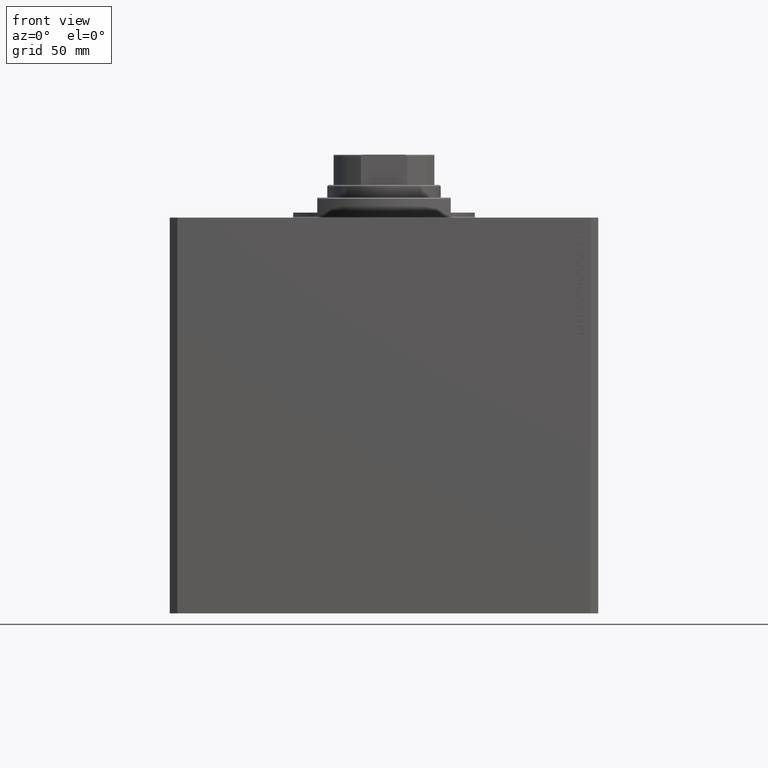
[diagram: clean part render]
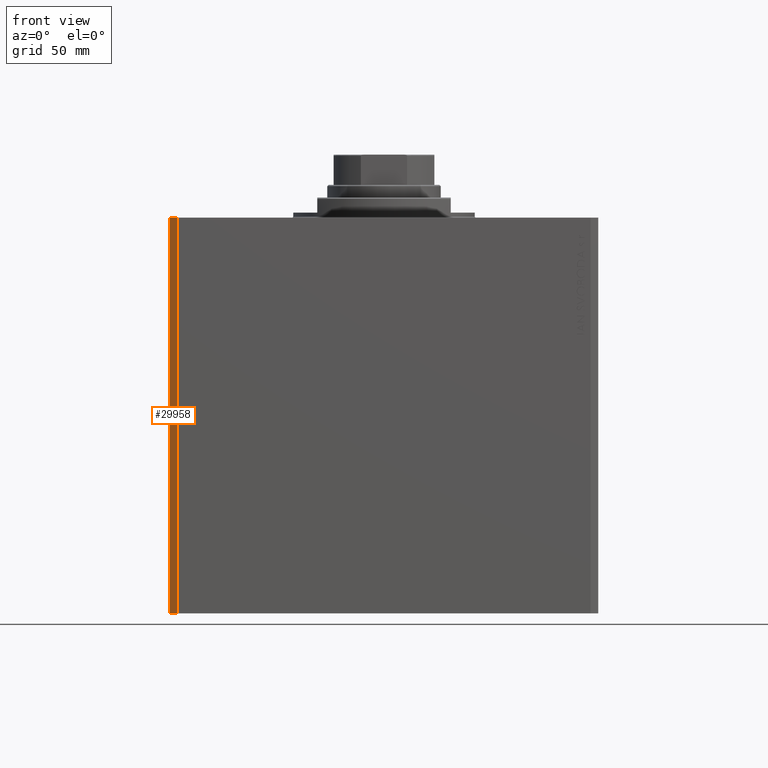
[diagram: same view with one face highlighted and labeled with its STEP entity id]
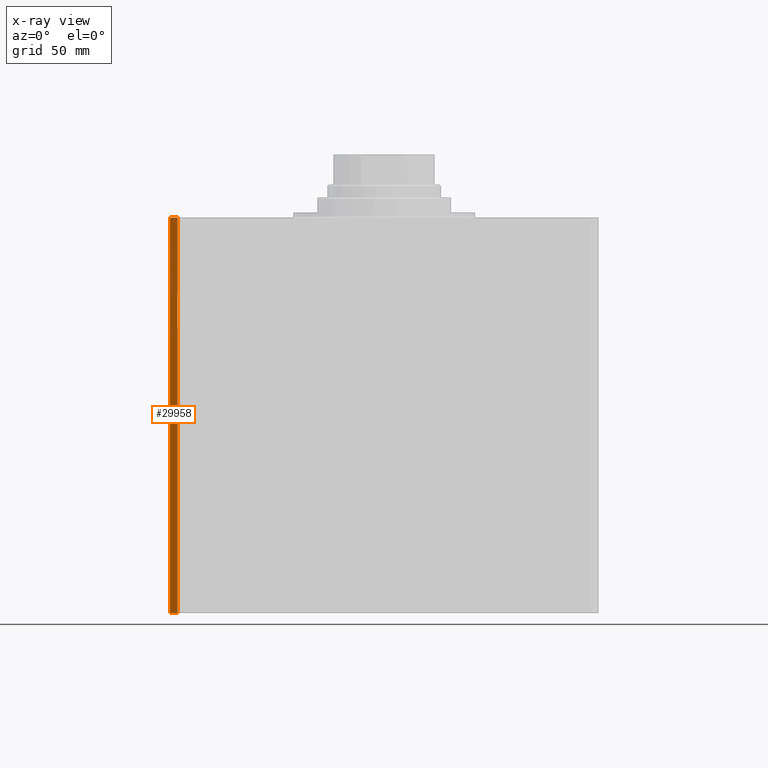
[diagram: x-ray of the same camera — body ghosted, the highlighted face saturated]
A machine part, front view. The second image highlights one B-rep face of the part: STEP entity #29958.
The next image is the same camera in x-ray: the body ghosted, the highlighted face saturated — about 0% of this face is hidden behind the body in this view.
In plain terms, the highlighted planar face has unit normal (-0.7071, -0.7071, 0).
Its self-contained STEP definition (entity closure, byte-faithful):
#409 = DIRECTION ( 'NONE',  ( 0.7071067811865474617, -0.7071067811865474617, 0.000000000000000000 ) ) ;
#2869 = CARTESIAN_POINT ( 'NONE',  ( -82.00000000000000000, -70.00000000000000000, 0.000000000000000000 ) ) ;
#4434 = VECTOR ( 'NONE', #409, 1000.000000000000114 ) ;
#5464 = EDGE_CURVE ( 'NONE', #8313, #41954, #5601, .T. ) ;
#5601 = LINE ( 'NONE', #31849, #41486 ) ;
#7093 = CARTESIAN_POINT ( 'NONE',  ( -82.00000000000000000, -70.00000000000000000, -157.0000000000000000 ) ) ;
#7136 = FACE_OUTER_BOUND ( 'NONE', #18946, .T. ) ;
#7204 = EDGE_CURVE ( 'NONE', #20730, #30053, #36058, .T. ) ;
#7457 = VECTOR ( 'NONE', #41080, 1000.000000000000114 ) ;
#8313 = VERTEX_POINT ( 'NONE', #27410 ) ;
#14918 = LINE ( 'NONE', #26523, #7457 ) ;
#17795 = VECTOR ( 'NONE', #31160, 1000.000000000000000 ) ;
#17895 = CARTESIAN_POINT ( 'NONE',  ( -85.00000000000000000, -67.00000000000000000, -157.0000000000000000 ) ) ;
#18602 = EDGE_CURVE ( 'NONE', #8313, #20730, #14918, .T. ) ;
#18946 = EDGE_LOOP ( 'NONE', ( #25502, #38506, #33339, #21253 ) ) ;
#19058 = EDGE_CURVE ( 'NONE', #41954, #30053, #40258, .T. ) ;
#20730 = VERTEX_POINT ( 'NONE', #7093 ) ;
#21074 = DIRECTION ( 'NONE',  ( 0.000000000000000000, 0.000000000000000000, 1.000000000000000000 ) ) ;
#21253 = ORIENTED_EDGE ( 'NONE', *, *, #7204, .T. ) ;
#21934 = PLANE ( 'NONE',  #47141 ) ;
#25502 = ORIENTED_EDGE ( 'NONE', *, *, #19058, .F. ) ;
#26523 = CARTESIAN_POINT ( 'NONE',  ( -85.00000000000000000, -67.00000000000000000, -157.0000000000000000 ) ) ;
#27410 = CARTESIAN_POINT ( 'NONE',  ( -85.00000000000000000, -67.00000000000000000, -157.0000000000000000 ) ) ;
#28826 = CARTESIAN_POINT ( 'NONE',  ( -85.00000000000000000, -67.00000000000000000, 0.000000000000000000 ) ) ;
#29958 = ADVANCED_FACE ( 'NONE', ( #7136 ), #21934, .T. ) ;
#30053 = VERTEX_POINT ( 'NONE', #2869 ) ;
#31160 = DIRECTION ( 'NONE',  ( 0.000000000000000000, 0.000000000000000000, 1.000000000000000000 ) ) ;
#31229 = CARTESIAN_POINT ( 'NONE',  ( -85.00000000000000000, -67.00000000000000000, 0.000000000000000000 ) ) ;
#31849 = CARTESIAN_POINT ( 'NONE',  ( -85.00000000000000000, -67.00000000000000000, -157.0000000000000000 ) ) ;
#33339 = ORIENTED_EDGE ( 'NONE', *, *, #18602, .T. ) ;
#34965 = CARTESIAN_POINT ( 'NONE',  ( -82.00000000000000000, -70.00000000000000000, -157.0000000000000000 ) ) ;
#36036 = DIRECTION ( 'NONE',  ( 0.7071067811865474617, -0.7071067811865474617, 0.000000000000000000 ) ) ;
#36058 = LINE ( 'NONE', #34965, #17795 ) ;
#38506 = ORIENTED_EDGE ( 'NONE', *, *, #5464, .F. ) ;
#40258 = LINE ( 'NONE', #28826, #4434 ) ;
#41080 = DIRECTION ( 'NONE',  ( 0.7071067811865474617, -0.7071067811865474617, 0.000000000000000000 ) ) ;
#41486 = VECTOR ( 'NONE', #21074, 1000.000000000000000 ) ;
#41954 = VERTEX_POINT ( 'NONE', #31229 ) ;
#43672 = DIRECTION ( 'NONE',  ( -0.7071067811865475727, -0.7071067811865475727, 0.000000000000000000 ) ) ;
#47141 = AXIS2_PLACEMENT_3D ( 'NONE', #17895, #43672, #36036 ) ;